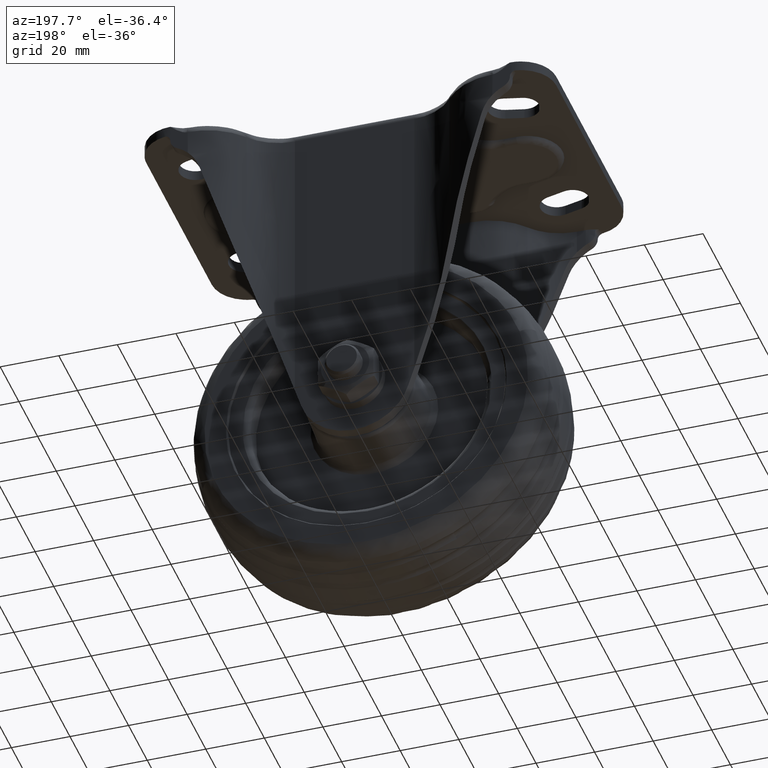
[diagram: clean part render]
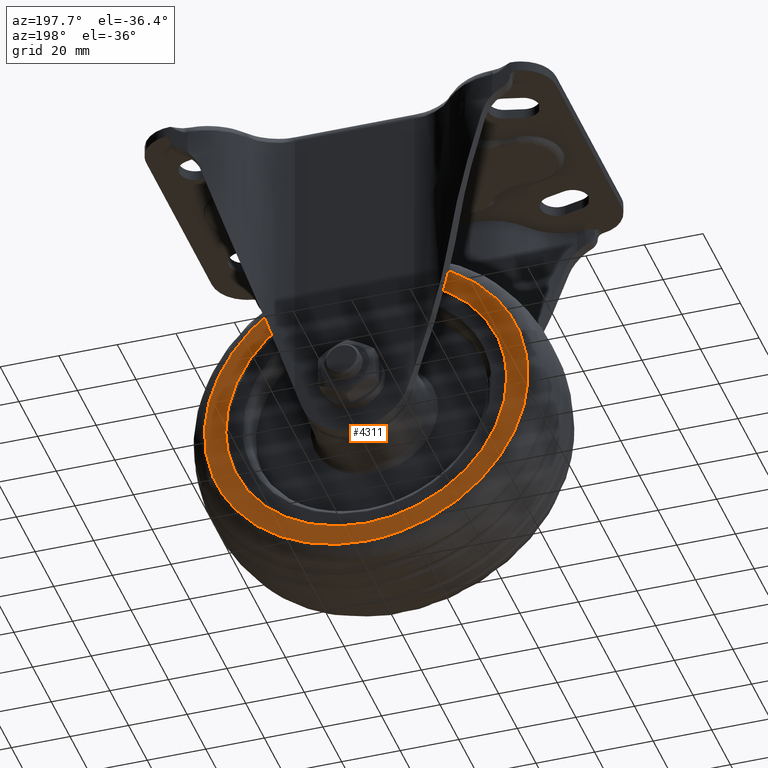
[diagram: same view with one face highlighted and labeled with its STEP entity id]
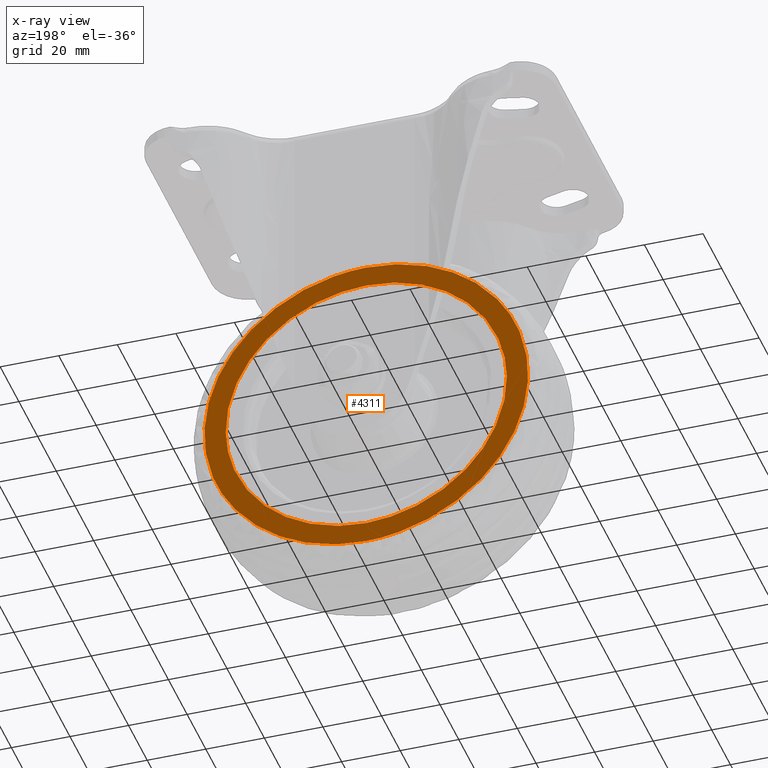
[diagram: x-ray of the same camera — body ghosted, the highlighted face saturated]
A machine part, auxiliary view. The second image highlights one B-rep face of the part: STEP entity #4311.
The next image is the same camera in x-ray: the body ghosted, the highlighted face saturated — about 0% of this face is hidden behind the body in this view.
In plain terms, the highlighted face is a freeform B-spline surface patch.
Its self-contained STEP definition (entity closure, byte-faithful):
#4103=CARTESIAN_POINT('',(52.343097339270933,19.0,-17.737534899689511));
#4104=VERTEX_POINT('',#4103);
#4105=CARTESIAN_POINT('',(0.0,19.0,55.266797999999611));
#4106=VERTEX_POINT('',#4105);
#4107=CARTESIAN_POINT('',(52.343097339270919,18.999999999999996,-17.737534899689511));
#4108=CARTESIAN_POINT('',(55.266805001230466,19.000000000000004,-9.109730866822554));
#4109=CARTESIAN_POINT('',(55.266805001122663,19.0,-0.000007000380627));
#4110=CARTESIAN_POINT('',(55.266805000468636,18.999999999999993,55.266797999840698));
#4111=CARTESIAN_POINT('',(0.0,19.0,55.266797999999611));
#4119=(BOUNDED_CURVE()B_SPLINE_CURVE(2,(#4107,#4108,#4109,#4110,#4111),.UNSPECIFIED.,.F.,.U.)B_SPLINE_CURVE_WITH_KNOTS((3,2,3),(0.195447761693786,0.250000000000000,0.500000000000000),.UNSPECIFIED.)CURVE()GEOMETRIC_REPRESENTATION_ITEM()RATIONAL_B_SPLINE_CURVE((0.900068462127018,0.936088077316058,1.0,0.707106781186548,1.0))REPRESENTATION_ITEM(''));
#4120=EDGE_CURVE('',#4104,#4106,#4119,.T.);
#4122=CARTESIAN_POINT('',(-52.343097339270912,19.0,17.737520899689329));
#4123=VERTEX_POINT('',#4122);
#4124=CARTESIAN_POINT('',(0.0,19.0,55.266797999999611));
#4125=CARTESIAN_POINT('',(-39.625535072190594,19.000000000000004,55.266798000221257));
#4126=CARTESIAN_POINT('',(-52.343097339270912,18.999999999999996,17.737520899689333));
#4134=(BOUNDED_CURVE()B_SPLINE_CURVE(2,(#4124,#4125,#4126),.UNSPECIFIED.,.F.,.U.)B_SPLINE_CURVE_WITH_KNOTS((3,3),(0.500000000000000,0.695447761693786),.UNSPECIFIED.)CURVE()GEOMETRIC_REPRESENTATION_ITEM()RATIONAL_B_SPLINE_CURVE((1.0,0.771018703870489,0.900068462127018))REPRESENTATION_ITEM(''));
#4135=EDGE_CURVE('',#4106,#4123,#4134,.T.);
#4197=CARTESIAN_POINT('',(0.0,19.0,-55.266811999999803));
#4198=VERTEX_POINT('',#4197);
#4199=CARTESIAN_POINT('',(0.0,19.0,-55.266811999999803));
#4200=CARTESIAN_POINT('',(39.625535072190594,19.000000000000004,-55.266812000221428));
#4201=CARTESIAN_POINT('',(52.343097339270919,18.999999999999996,-17.737534899689511));
#4209=(BOUNDED_CURVE()B_SPLINE_CURVE(2,(#4199,#4200,#4201),.UNSPECIFIED.,.F.,.U.)B_SPLINE_CURVE_WITH_KNOTS((3,3),(0.0,0.195447761693786),.UNSPECIFIED.)CURVE()GEOMETRIC_REPRESENTATION_ITEM()RATIONAL_B_SPLINE_CURVE((1.0,0.771018703870489,0.900068462127018))REPRESENTATION_ITEM(''));
#4210=EDGE_CURVE('',#4198,#4104,#4209,.T.);
#4216=CARTESIAN_POINT('',(-52.343097339270912,18.999999999999996,17.737520899689333));
#4217=CARTESIAN_POINT('',(-55.266805001230452,18.999999999999993,9.109716866822378));
#4218=CARTESIAN_POINT('',(-55.266805001122648,19.0,-0.000006999619550));
#4219=CARTESIAN_POINT('',(-55.266805000468636,18.999999999999993,-55.266811999840883));
#4220=CARTESIAN_POINT('',(0.0,19.0,-55.266811999999803));
#4228=(BOUNDED_CURVE()B_SPLINE_CURVE(2,(#4216,#4217,#4218,#4219,#4220),.UNSPECIFIED.,.F.,.U.)B_SPLINE_CURVE_WITH_KNOTS((3,2,3),(0.695447761693786,0.750000000000000,1.0),.UNSPECIFIED.)CURVE()GEOMETRIC_REPRESENTATION_ITEM()RATIONAL_B_SPLINE_CURVE((0.900068462127018,0.936088077316058,1.0,0.707106781186548,1.0))REPRESENTATION_ITEM(''));
#4229=EDGE_CURVE('',#4123,#4198,#4228,.T.);
#4234=CARTESIAN_POINT('',(-60.784627863233567,19.0,-60.787965605264183));
#4235=CARTESIAN_POINT('',(-60.784627863233567,19.0,60.787954570006448));
#4236=CARTESIAN_POINT('',(60.784630825349559,19.0,-60.787965605264183));
#4237=CARTESIAN_POINT('',(60.784630825349559,19.0,60.787954570006448));
#4238=B_SPLINE_SURFACE_WITH_KNOTS('',1,1,((#4234,#4236),(#4235,#4237)),.UNSPECIFIED.,.F.,.F.,.U.,(2,2),(2,2),(0.0,121.575920175270600),(0.0,121.569258688583100),.UNSPECIFIED.);
#4239=ORIENTED_EDGE('',*,*,#4229,.F.);
#4240=ORIENTED_EDGE('',*,*,#4135,.F.);
#4241=ORIENTED_EDGE('',*,*,#4120,.F.);
#4242=ORIENTED_EDGE('',*,*,#4210,.F.);
#4243=EDGE_LOOP('',(#4239,#4240,#4241,#4242));
#4244=FACE_OUTER_BOUND('',#4243,.T.);
#4245=CARTESIAN_POINT('',(0.0,19.0,-47.999992999999897));
#4246=VERTEX_POINT('',#4245);
#4247=CARTESIAN_POINT('',(47.996196104373972,19.0,-0.603176738556278));
#4248=VERTEX_POINT('',#4247);
#4249=CARTESIAN_POINT('',(0.0,19.0,-47.999992999999897));
#4250=CARTESIAN_POINT('',(47.400558800820050,19.000000000000007,-47.999992999883602));
#4251=CARTESIAN_POINT('',(47.996196104373965,19.000000000000004,-0.603176738556278));
#4259=(BOUNDED_CURVE()B_SPLINE_CURVE(2,(#4249,#4250,#4251),.UNSPECIFIED.,.F.,.U.)B_SPLINE_CURVE_WITH_KNOTS((3,3),(0.0,0.247784295920583),.UNSPECIFIED.)CURVE()GEOMETRIC_REPRESENTATION_ITEM()RATIONAL_B_SPLINE_CURVE((1.0,0.709702639985581,0.994854295641377))REPRESENTATION_ITEM(''));
#4260=EDGE_CURVE('',#4246,#4248,#4259,.T.);
#4261=ORIENTED_EDGE('',*,*,#4260,.T.);
#4262=CARTESIAN_POINT('',(0.0,19.0,47.999978999999712));
#4263=VERTEX_POINT('',#4262);
#4264=CARTESIAN_POINT('',(47.996196104373965,19.000000000000004,-0.603176738556278));
#4265=CARTESIAN_POINT('',(47.999985981546757,19.000000000000004,-0.301603775569390));
#4266=CARTESIAN_POINT('',(47.999985981604901,19.0,-0.000006999768927));
#4267=CARTESIAN_POINT('',(47.999985990860161,18.999999999999993,47.999979000114557));
#4268=CARTESIAN_POINT('',(0.0,19.0,47.999978999999712));
#4276=(BOUNDED_CURVE()B_SPLINE_CURVE(2,(#4264,#4265,#4266,#4267,#4268),.UNSPECIFIED.,.F.,.U.)B_SPLINE_CURVE_WITH_KNOTS((3,2,3),(0.247784295920583,0.250000000000000,0.500000000000000),.UNSPECIFIED.)CURVE()GEOMETRIC_REPRESENTATION_ITEM()RATIONAL_B_SPLINE_CURVE((0.994854295641377,0.997404141200966,1.0,0.707106781186548,1.0))REPRESENTATION_ITEM(''));
#4277=EDGE_CURVE('',#4248,#4263,#4276,.T.);
#4278=ORIENTED_EDGE('',*,*,#4277,.T.);
#4279=CARTESIAN_POINT('',(-47.996196104373972,19.0,0.603162738556089));
#4280=VERTEX_POINT('',#4279);
#4281=CARTESIAN_POINT('',(0.0,19.0,47.999978999999712));
#4282=CARTESIAN_POINT('',(-47.400558800820065,18.999999999999993,47.999978999883403));
#4283=CARTESIAN_POINT('',(-47.996196104373965,19.0,0.603162738556089));
#4291=(BOUNDED_CURVE()B_SPLINE_CURVE(2,(#4281,#4282,#4283),.UNSPECIFIED.,.F.,.U.)B_SPLINE_CURVE_WITH_KNOTS((3,3),(0.500000000000000,0.747784295920583),.UNSPECIFIED.)CURVE()GEOMETRIC_REPRESENTATION_ITEM()RATIONAL_B_SPLINE_CURVE((1.0,0.709702639985581,0.994854295641378))REPRESENTATION_ITEM(''));
#4292=EDGE_CURVE('',#4263,#4280,#4291,.T.);
#4293=ORIENTED_EDGE('',*,*,#4292,.T.);
#4294=CARTESIAN_POINT('',(-47.996196104373965,19.0,0.603162738556089));
#4295=CARTESIAN_POINT('',(-47.999985981546772,19.0,0.301589775569205));
#4296=CARTESIAN_POINT('',(-47.999985981604922,19.0,-0.000007000231254));
#4297=CARTESIAN_POINT('',(-47.999985990860161,18.999999999999993,-47.999993000114777));
#4298=CARTESIAN_POINT('',(0.0,19.0,-47.999992999999897));
#4306=(BOUNDED_CURVE()B_SPLINE_CURVE(2,(#4294,#4295,#4296,#4297,#4298),.UNSPECIFIED.,.F.,.U.)B_SPLINE_CURVE_WITH_KNOTS((3,2,3),(0.747784295920583,0.750000000000000,1.0),.UNSPECIFIED.)CURVE()GEOMETRIC_REPRESENTATION_ITEM()RATIONAL_B_SPLINE_CURVE((0.994854295641378,0.997404141200966,1.0,0.707106781186548,1.0))REPRESENTATION_ITEM(''));
#4307=EDGE_CURVE('',#4280,#4246,#4306,.T.);
#4308=ORIENTED_EDGE('',*,*,#4307,.T.);
#4309=EDGE_LOOP('',(#4261,#4278,#4293,#4308));
#4310=FACE_BOUND('',#4309,.T.);
#4311=ADVANCED_FACE('',(#4244,#4310),#4238,.T.);